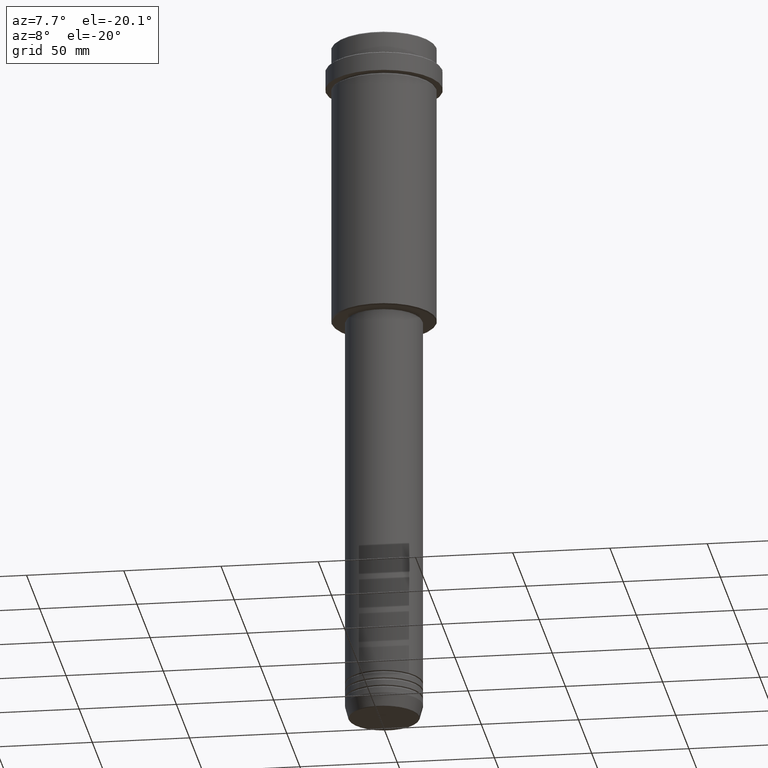
[diagram: clean part render]
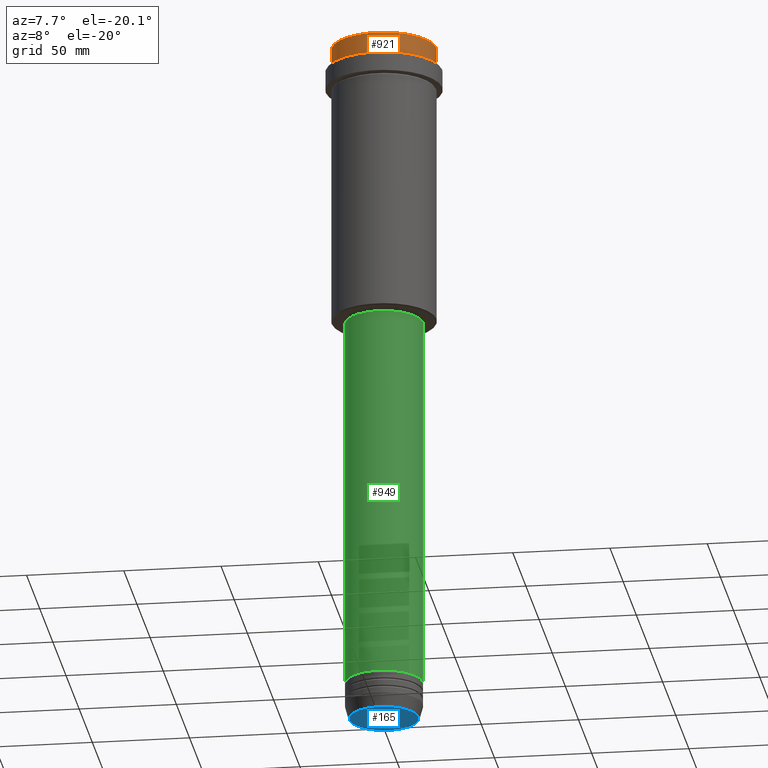
[diagram: same view with three faces highlighted in distinct colors, each labeled with its STEP entity id]
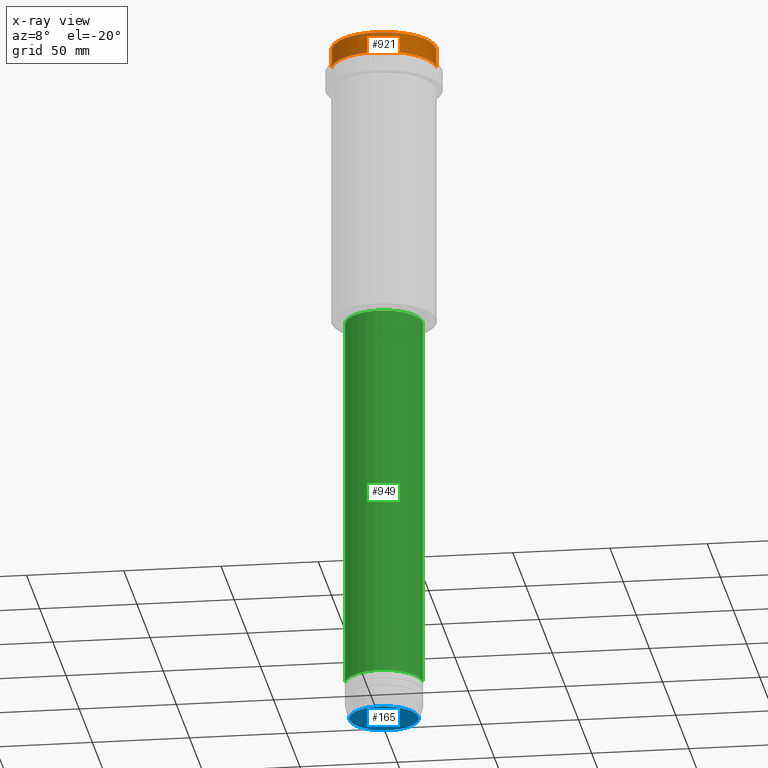
[diagram: x-ray of the same camera — body ghosted, the three highlighted faces saturated]
A machine part, auxiliary view with three faces highlighted in distinct colors.
The next image is the same camera in x-ray (body ghosted, the three faces saturated) — at least one of them is partly hidden behind the body in this view.
Their STEP definitions:

[orange] entity #921 — the highlighted cylindrical surface (partial cylindrical patch) has radius 27 mm, axis along (-0, -0, 1).
#109 = AXIS2_PLACEMENT_3D ( 'NONE', #977, #649, #531 ) ;
#188 = CARTESIAN_POINT ( 'NONE',  ( 26.99999999999999645, 0.000000000000000000, 0.000000000000000000 ) ) ;
#220 = AXIS2_PLACEMENT_3D ( 'NONE', #1273, #740, #600 ) ;
#234 = ORIENTED_EDGE ( 'NONE', *, *, #1251, .T. ) ;
#242 = CARTESIAN_POINT ( 'NONE',  ( -26.99999999999999645, 3.306546357697853339E-15, -0.5000000000000316414 ) ) ;
#270 = VECTOR ( 'NONE', #519, 1000.000000000000000 ) ;
#281 = VERTEX_POINT ( 'NONE', #1331 ) ;
#283 = CARTESIAN_POINT ( 'NONE',  ( 0.000000000000000000, 0.000000000000000000, -11.00000000000000178 ) ) ;
#294 = DIRECTION ( 'NONE',  ( 1.000000000000000000, 0.000000000000000000, 0.000000000000000000 ) ) ;
#318 = EDGE_CURVE ( 'NONE', #1258, #653, #1191, .T. ) ;
#347 = ORIENTED_EDGE ( 'NONE', *, *, #1117, .T. ) ;
#364 = EDGE_CURVE ( 'NONE', #281, #653, #511, .T. ) ;
#511 = LINE ( 'NONE', #1254, #912 ) ;
#519 = DIRECTION ( 'NONE',  ( -0.000000000000000000, -0.000000000000000000, 1.000000000000000000 ) ) ;
#531 = DIRECTION ( 'NONE',  ( 1.000000000000000000, 0.000000000000000000, 0.000000000000000000 ) ) ;
#564 = AXIS2_PLACEMENT_3D ( 'NONE', #283, #1249, #294 ) ;
#600 = DIRECTION ( 'NONE',  ( 1.000000000000000000, 0.000000000000000000, 0.000000000000000000 ) ) ;
#649 = DIRECTION ( 'NONE',  ( -0.000000000000000000, -0.000000000000000000, 1.000000000000000000 ) ) ;
#653 = VERTEX_POINT ( 'NONE', #242 ) ;
#740 = DIRECTION ( 'NONE',  ( 0.000000000000000000, 0.000000000000000000, -1.000000000000000000 ) ) ;
#829 = CARTESIAN_POINT ( 'NONE',  ( 26.99999999999999645, 0.000000000000000000, -11.00000000000000178 ) ) ;
#853 = FACE_OUTER_BOUND ( 'NONE', #1320, .T. ) ;
#912 = VECTOR ( 'NONE', #1036, 1000.000000000000000 ) ;
#921 = ADVANCED_FACE ( 'NONE', ( #853 ), #1398, .T. ) ;
#923 = ORIENTED_EDGE ( 'NONE', *, *, #318, .T. ) ;
#940 = CARTESIAN_POINT ( 'NONE',  ( 26.99999999999999645, 0.000000000000000000, -0.5000000000000316414 ) ) ;
#977 = CARTESIAN_POINT ( 'NONE',  ( 0.000000000000000000, 0.000000000000000000, 0.000000000000000000 ) ) ;
#1036 = DIRECTION ( 'NONE',  ( -0.000000000000000000, -0.000000000000000000, 1.000000000000000000 ) ) ;
#1117 = EDGE_CURVE ( 'NONE', #281, #1231, #1168, .T. ) ;
#1168 = CIRCLE ( 'NONE', #564, 26.99999999999999645 ) ;
#1191 = CIRCLE ( 'NONE', #220, 26.99999999999999645 ) ;
#1231 = VERTEX_POINT ( 'NONE', #829 ) ;
#1249 = DIRECTION ( 'NONE',  ( -0.000000000000000000, -0.000000000000000000, 1.000000000000000000 ) ) ;
#1251 = EDGE_CURVE ( 'NONE', #1231, #1258, #1261, .T. ) ;
#1254 = CARTESIAN_POINT ( 'NONE',  ( -26.99999999999999645, 3.306546357697853339E-15, 0.000000000000000000 ) ) ;
#1258 = VERTEX_POINT ( 'NONE', #940 ) ;
#1261 = LINE ( 'NONE', #188, #270 ) ;
#1272 = ORIENTED_EDGE ( 'NONE', *, *, #364, .F. ) ;
#1273 = CARTESIAN_POINT ( 'NONE',  ( 0.000000000000000000, 0.000000000000000000, -0.5000000000000316414 ) ) ;
#1320 = EDGE_LOOP ( 'NONE', ( #1272, #347, #234, #923 ) ) ;
#1331 = CARTESIAN_POINT ( 'NONE',  ( -26.99999999999999645, 3.306546357697853339E-15, -11.00000000000000178 ) ) ;
#1398 = CYLINDRICAL_SURFACE ( 'NONE', #109, 26.99999999999999645 ) ;

[blue] entity #165 — the highlighted planar face has unit normal (0, -0, 1).
#36 = CARTESIAN_POINT ( 'NONE',  ( -17.74069215899265828, 2.202181136001357959E-15, -363.0000000000000568 ) ) ;
#165 = ADVANCED_FACE ( 'NONE', ( #690 ), #801, .F. ) ;
#169 = CARTESIAN_POINT ( 'NONE',  ( 17.74069215899265828, 0.000000000000000000, -363.0000000000000568 ) ) ;
#231 = DIRECTION ( 'NONE',  ( 1.000000000000000000, 0.000000000000000000, 0.000000000000000000 ) ) ;
#243 = EDGE_LOOP ( 'NONE', ( #1154, #1213 ) ) ;
#300 = EDGE_CURVE ( 'NONE', #554, #667, #841, .T. ) ;
#337 = DIRECTION ( 'NONE',  ( 0.000000000000000000, 0.000000000000000000, -1.000000000000000000 ) ) ;
#432 = DIRECTION ( 'NONE',  ( 1.000000000000000000, 0.000000000000000000, 0.000000000000000000 ) ) ;
#444 = AXIS2_PLACEMENT_3D ( 'NONE', #1123, #1026, #1020 ) ;
#554 = VERTEX_POINT ( 'NONE', #169 ) ;
#667 = VERTEX_POINT ( 'NONE', #36 ) ;
#690 = FACE_OUTER_BOUND ( 'NONE', #243, .T. ) ;
#753 = CARTESIAN_POINT ( 'NONE',  ( 0.000000000000000000, 0.000000000000000000, -363.0000000000000568 ) ) ;
#760 = CARTESIAN_POINT ( 'NONE',  ( 0.000000000000000000, 0.000000000000000000, -363.0000000000000568 ) ) ;
#801 = PLANE ( 'NONE',  #444 ) ;
#841 = CIRCLE ( 'NONE', #1075, 17.74069215899265828 ) ;
#894 = AXIS2_PLACEMENT_3D ( 'NONE', #753, #1186, #432 ) ;
#909 = EDGE_CURVE ( 'NONE', #667, #554, #1077, .T. ) ;
#1020 = DIRECTION ( 'NONE',  ( 1.000000000000000000, 0.000000000000000000, 0.000000000000000000 ) ) ;
#1026 = DIRECTION ( 'NONE',  ( 0.000000000000000000, -0.000000000000000000, 1.000000000000000000 ) ) ;
#1075 = AXIS2_PLACEMENT_3D ( 'NONE', #760, #337, #231 ) ;
#1077 = CIRCLE ( 'NONE', #894, 17.74069215899265828 ) ;
#1123 = CARTESIAN_POINT ( 'NONE',  ( 0.000000000000000000, 0.000000000000000000, -363.0000000000000568 ) ) ;
#1154 = ORIENTED_EDGE ( 'NONE', *, *, #300, .T. ) ;
#1186 = DIRECTION ( 'NONE',  ( 0.000000000000000000, 0.000000000000000000, -1.000000000000000000 ) ) ;
#1213 = ORIENTED_EDGE ( 'NONE', *, *, #909, .T. ) ;

[green] entity #949 — the highlighted cylindrical surface (partial cylindrical patch) has radius 20 mm, axis along (-0, -0, 1).
#30 = ORIENTED_EDGE ( 'NONE', *, *, #1204, .T. ) ;
#82 = CIRCLE ( 'NONE', #183, 19.99999999999999645 ) ;
#95 = DIRECTION ( 'NONE',  ( -0.000000000000000000, -0.000000000000000000, 1.000000000000000000 ) ) ;
#101 = VECTOR ( 'NONE', #95, 1000.000000000000000 ) ;
#116 = LINE ( 'NONE', #215, #101 ) ;
#125 = VERTEX_POINT ( 'NONE', #1180 ) ;
#183 = AXIS2_PLACEMENT_3D ( 'NONE', #1049, #383, #709 ) ;
#215 = CARTESIAN_POINT ( 'NONE',  ( -19.99999999999999645, 2.449293598294706119E-15, 0.000000000000000000 ) ) ;
#250 = CIRCLE ( 'NONE', #542, 20.00000000000000000 ) ;
#328 = DIRECTION ( 'NONE',  ( 1.000000000000000000, 0.000000000000000000, 0.000000000000000000 ) ) ;
#342 = VERTEX_POINT ( 'NONE', #1173 ) ;
#381 = CARTESIAN_POINT ( 'NONE',  ( 0.000000000000000000, 0.000000000000000000, -343.9999999999999432 ) ) ;
#383 = DIRECTION ( 'NONE',  ( -0.000000000000000000, -0.000000000000000000, 1.000000000000000000 ) ) ;
#409 = ORIENTED_EDGE ( 'NONE', *, *, #797, .F. ) ;
#426 = EDGE_CURVE ( 'NONE', #593, #342, #116, .T. ) ;
#438 = FACE_OUTER_BOUND ( 'NONE', #1353, .T. ) ;
#459 = ORIENTED_EDGE ( 'NONE', *, *, #426, .F. ) ;
#476 = AXIS2_PLACEMENT_3D ( 'NONE', #859, #1305, #328 ) ;
#542 = AXIS2_PLACEMENT_3D ( 'NONE', #381, #910, #810 ) ;
#553 = VERTEX_POINT ( 'NONE', #697 ) ;
#593 = VERTEX_POINT ( 'NONE', #805 ) ;
#697 = CARTESIAN_POINT ( 'NONE',  ( 20.00000000000000000, 0.000000000000000000, -343.9999999999999432 ) ) ;
#709 = DIRECTION ( 'NONE',  ( 1.000000000000000000, 0.000000000000000000, 0.000000000000000000 ) ) ;
#744 = EDGE_CURVE ( 'NONE', #553, #125, #1378, .T. ) ;
#797 = EDGE_CURVE ( 'NONE', #342, #125, #82, .T. ) ;
#805 = CARTESIAN_POINT ( 'NONE',  ( -20.00000000000000000, 2.449293598294706513E-15, -343.9999999999999432 ) ) ;
#810 = DIRECTION ( 'NONE',  ( 1.000000000000000000, 0.000000000000000000, 0.000000000000000000 ) ) ;
#816 = DIRECTION ( 'NONE',  ( -0.000000000000000000, -0.000000000000000000, 1.000000000000000000 ) ) ;
#847 = CYLINDRICAL_SURFACE ( 'NONE', #476, 19.99999999999999645 ) ;
#859 = CARTESIAN_POINT ( 'NONE',  ( 0.000000000000000000, 0.000000000000000000, 0.000000000000000000 ) ) ;
#910 = DIRECTION ( 'NONE',  ( -0.000000000000000000, -0.000000000000000000, 1.000000000000000000 ) ) ;
#949 = ADVANCED_FACE ( 'NONE', ( #438 ), #847, .T. ) ;
#1049 = CARTESIAN_POINT ( 'NONE',  ( 0.000000000000000000, 0.000000000000000000, -148.9999999999999716 ) ) ;
#1173 = CARTESIAN_POINT ( 'NONE',  ( -19.99999999999999645, 2.449293598294706119E-15, -148.9999999999999716 ) ) ;
#1180 = CARTESIAN_POINT ( 'NONE',  ( 19.99999999999999645, 0.000000000000000000, -148.9999999999999716 ) ) ;
#1204 = EDGE_CURVE ( 'NONE', #593, #553, #250, .T. ) ;
#1238 = ORIENTED_EDGE ( 'NONE', *, *, #744, .T. ) ;
#1242 = VECTOR ( 'NONE', #816, 1000.000000000000000 ) ;
#1305 = DIRECTION ( 'NONE',  ( -0.000000000000000000, -0.000000000000000000, 1.000000000000000000 ) ) ;
#1353 = EDGE_LOOP ( 'NONE', ( #459, #30, #1238, #409 ) ) ;
#1378 = LINE ( 'NONE', #1393, #1242 ) ;
#1393 = CARTESIAN_POINT ( 'NONE',  ( 19.99999999999999645, 0.000000000000000000, 0.000000000000000000 ) ) ;